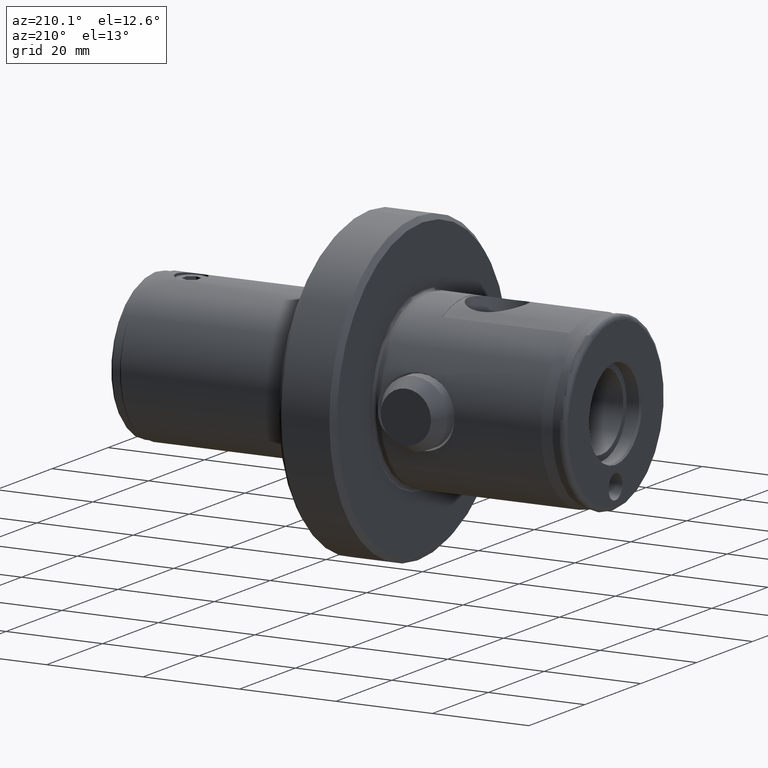
[diagram: clean part render]
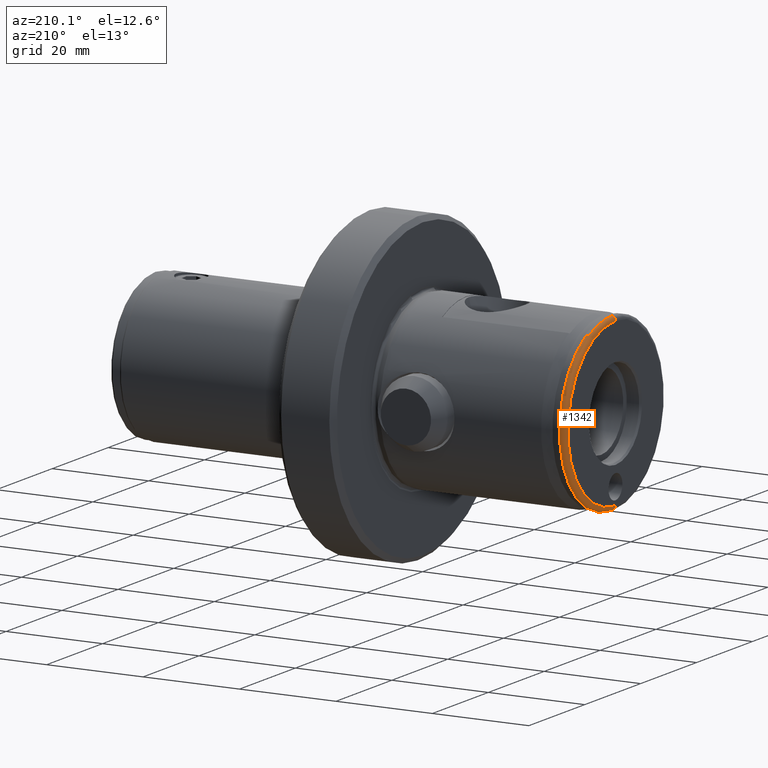
[diagram: same view with one face highlighted and labeled with its STEP entity id]
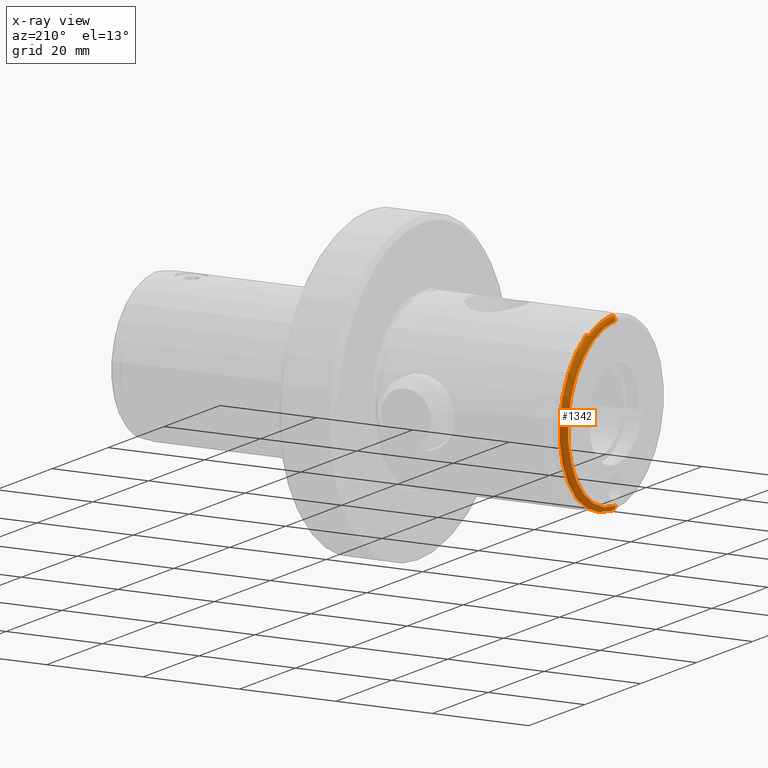
[diagram: x-ray of the same camera — body ghosted, the highlighted face saturated]
A machine part, auxiliary view. The second image highlights one B-rep face of the part: STEP entity #1342.
The next image is the same camera in x-ray: the body ghosted, the highlighted face saturated — about 0% of this face is hidden behind the body in this view.
In plain terms, the highlighted toroidal blend (fillet) surface has major radius 17 mm and minor (blend) radius 1 mm.
Its self-contained STEP definition (entity closure, byte-faithful):
#130 = CIRCLE ( 'NONE', #3949, 16.99999999999999300 ) ;
#174 = ORIENTED_EDGE ( 'NONE', *, *, #2074, .T. ) ;
#182 = CARTESIAN_POINT ( 'NONE',  ( 0.6346880122386147100, 2.942110066759028500, 17.70314422804933600 ) ) ;
#602 = CARTESIAN_POINT ( 'NONE',  ( 0.6473197686635989700, 7.169162838992922300, 16.45733664270533600 ) ) ;
#623 = CARTESIAN_POINT ( 'NONE',  ( 0.8221058920410879700, 8.500000000000001800, 15.85302790466864100 ) ) ;
#660 = EDGE_CURVE ( 'NONE', #1790, #2978, #1833, .T. ) ;
#682 = DIRECTION ( 'NONE',  ( 0.0000000000000000000, -1.224646799147353500E-016, 1.000000000000000000 ) ) ;
#939 = TOROIDAL_SURFACE ( 'NONE', #1182, 16.99999999999999300, 1.000000000000000400 ) ;
#977 = ORIENTED_EDGE ( 'NONE', *, *, #2385, .F. ) ;
#1083 = CARTESIAN_POINT ( 'NONE',  ( 0.6542505968227911900, 8.500000000000001800, 15.79663165262242700 ) ) ;
#1169 = B_SPLINE_CURVE_WITH_KNOTS ( 'NONE', 3,
 ( #1807, #5011, #602, #2946, #2981, #1764, #182, #1391, #3407, #4606, #1803, #4189 ),
 .UNSPECIFIED., .F., .F.,
 ( 4, 2, 2, 2, 2, 4 ),
 ( 2.265434088413060900E-007, 0.002225663129928730200, 0.004451099716448619200, 0.006676536302968508200, 0.007789254596228452700, 0.008901972889488397200 ),
 .UNSPECIFIED. ) ;
#1177 = EDGE_CURVE ( 'NONE', #2978, #1321, #130, .T. ) ;
#1182 = AXIS2_PLACEMENT_3D ( 'NONE', #1711, #2121, #4183 ) ;
#1321 = VERTEX_POINT ( 'NONE', #4338 ) ;
#1342 = ADVANCED_FACE ( 'NONE', ( #4141 ), #939, .T. ) ;
#1343 = ORIENTED_EDGE ( 'NONE', *, *, #660, .F. ) ;
#1391 = CARTESIAN_POINT ( 'NONE',  ( 0.6333432282314053200, 1.847521542121686600, 17.83870824488434400 ) ) ;
#1412 = DIRECTION ( 'NONE',  ( 0.0000000000000000000, -1.000000000000000000, 0.0000000000000000000 ) ) ;
#1451 = CARTESIAN_POINT ( 'NONE',  ( 1.173648177666931000, 8.500000000000001800, 15.84939462291250200 ) ) ;
#1567 = B_SPLINE_CURVE_WITH_KNOTS ( 'NONE', 3,
 ( #1451, #4662, #1847, #623, #1867, #3463 ),
 .UNSPECIFIED., .F., .F.,
 ( 4, 2, 4 ),
 ( 0.006068213492623661700, 0.006330788072026524900, 0.006593362651429388000 ),
 .UNSPECIFIED. ) ;
#1609 = CARTESIAN_POINT ( 'NONE',  ( 1.173648177666931000, 0.0000000000000000000, 0.0000000000000000000 ) ) ;
#1707 = VERTEX_POINT ( 'NONE', #1083 ) ;
#1711 = CARTESIAN_POINT ( 'NONE',  ( 1.000000000000000000, 0.0000000000000000000, 0.0000000000000000000 ) ) ;
#1764 = CARTESIAN_POINT ( 'NONE',  ( 0.6360243831397846000, 3.662361259201908100, 17.56871166904120700 ) ) ;
#1790 = VERTEX_POINT ( 'NONE', #1877 ) ;
#1803 = CARTESIAN_POINT ( 'NONE',  ( 0.6324404810102367500, 0.3691144895278926100, 17.92999999999978300 ) ) ;
#1807 = CARTESIAN_POINT ( 'NONE',  ( 0.6542505968227911900, 8.500000000000001800, 15.79663165262242700 ) ) ;
#1833 = CIRCLE ( 'NONE', #2957, 1.000000000000000900 ) ;
#1847 = CARTESIAN_POINT ( 'NONE',  ( 0.9981222527496895800, 8.500000000000001800, 15.87105069833617900 ) ) ;
#1856 = ORIENTED_EDGE ( 'NONE', *, *, #1968, .T. ) ;
#1867 = CARTESIAN_POINT ( 'NONE',  ( 0.7363995605874875700, 8.500000000000001800, 15.83100539435133100 ) ) ;
#1877 = CARTESIAN_POINT ( 'NONE',  ( 0.6324404810102349800, 1.084565710558474700E-011, 17.93000000000000000 ) ) ;
#1968 = EDGE_CURVE ( 'NONE', #4095, #5119, #3144, .T. ) ;
#1984 = AXIS2_PLACEMENT_3D ( 'NONE', #3948, #4308, #682 ) ;
#2019 = DIRECTION ( 'NONE',  ( 0.0000000000000000000, 0.0000000000000000000, 1.000000000000000000 ) ) ;
#2074 = EDGE_CURVE ( 'NONE', #5119, #1321, #3891, .T. ) ;
#2121 = DIRECTION ( 'NONE',  ( -1.000000000000000000, -0.0000000000000000000, -0.0000000000000000000 ) ) ;
#2369 = ORIENTED_EDGE ( 'NONE', *, *, #1177, .F. ) ;
#2385 = EDGE_CURVE ( 'NONE', #4095, #1707, #1567, .T. ) ;
#2523 = EDGE_LOOP ( 'NONE', ( #1856, #174, #2369, #1343, #4765, #977 ) ) ;
#2946 = CARTESIAN_POINT ( 'NONE',  ( 0.6418423092002282200, 5.785599335574092400, 16.99096693161065000 ) ) ;
#2957 = AXIS2_PLACEMENT_3D ( 'NONE', #3477, #1412, #5027 ) ;
#2971 = CARTESIAN_POINT ( 'NONE',  ( -4.336808689942017700E-016, 0.0000000000000000000, 0.0000000000000000000 ) ) ;
#2978 = VERTEX_POINT ( 'NONE', #3246 ) ;
#2981 = CARTESIAN_POINT ( 'NONE',  ( 0.6396017394597193200, 5.084105004543578900, 17.21261888832962900 ) ) ;
#3144 = CIRCLE ( 'NONE', #3657, 17.98480775301220200 ) ;
#3188 = CARTESIAN_POINT ( 'NONE',  ( 1.173648177666931000, 2.202503724800689500E-015, -17.98480775301220200 ) ) ;
#3246 = CARTESIAN_POINT ( 'NONE',  ( -4.336808689942017700E-016, 0.0000000000000000000, 16.99999999999999300 ) ) ;
#3407 = CARTESIAN_POINT ( 'NONE',  ( 0.6330054133423508300, 1.480283589093575300, 17.87285194226907200 ) ) ;
#3429 = CARTESIAN_POINT ( 'NONE',  ( 1.173648177666931000, 8.500000000000001800, 15.84939462291250200 ) ) ;
#3463 = CARTESIAN_POINT ( 'NONE',  ( 0.6542505968227911900, 8.500000000000001800, 15.79663165262242700 ) ) ;
#3477 = CARTESIAN_POINT ( 'NONE',  ( 1.000000000000000000, 0.0000000000000000000, 16.99999999999999300 ) ) ;
#3612 = DIRECTION ( 'NONE',  ( -1.000000000000000000, -0.0000000000000000000, -0.0000000000000000000 ) ) ;
#3657 = AXIS2_PLACEMENT_3D ( 'NONE', #1609, #3612, #2019 ) ;
#3835 = DIRECTION ( 'NONE',  ( -1.000000000000000000, -0.0000000000000000000, -0.0000000000000000000 ) ) ;
#3891 = CIRCLE ( 'NONE', #1984, 1.000000000000000900 ) ;
#3948 = CARTESIAN_POINT ( 'NONE',  ( 1.000000000000000000, 2.081899558550499900E-015, -16.99999999999999300 ) ) ;
#3949 = AXIS2_PLACEMENT_3D ( 'NONE', #2971, #3835, #4598 ) ;
#4095 = VERTEX_POINT ( 'NONE', #3429 ) ;
#4141 = FACE_OUTER_BOUND ( 'NONE', #2523, .T. ) ;
#4158 = EDGE_CURVE ( 'NONE', #1707, #1790, #1169, .T. ) ;
#4183 = DIRECTION ( 'NONE',  ( 0.0000000000000000000, 0.0000000000000000000, 1.000000000000000000 ) ) ;
#4189 = CARTESIAN_POINT ( 'NONE',  ( 0.6324404810102349800, 1.084565710558474700E-011, 17.93000000000000000 ) ) ;
#4308 = DIRECTION ( 'NONE',  ( -0.0000000000000000000, 1.000000000000000000, 1.224646799147353200E-016 ) ) ;
#4338 = CARTESIAN_POINT ( 'NONE',  ( -4.336808689942017700E-016, 2.142201641675594700E-015, -16.99999999999999300 ) ) ;
#4598 = DIRECTION ( 'NONE',  ( 0.0000000000000000000, 0.0000000000000000000, 1.000000000000000000 ) ) ;
#4606 = CARTESIAN_POINT ( 'NONE',  ( 0.6325534606832597900, 0.7409511913278183900, 17.91855654738308700 ) ) ;
#4662 = CARTESIAN_POINT ( 'NONE',  ( 1.087489751224861600, 8.500000000000003600, 15.86663352689552500 ) ) ;
#4765 = ORIENTED_EDGE ( 'NONE', *, *, #4158, .F. ) ;
#5011 = CARTESIAN_POINT ( 'NONE',  ( 0.6505351002739532300, 7.845101723602740100, 16.14747078919852500 ) ) ;
#5027 = DIRECTION ( 'NONE',  ( 0.0000000000000000000, 0.0000000000000000000, -1.000000000000000000 ) ) ;
#5119 = VERTEX_POINT ( 'NONE', #3188 ) ;